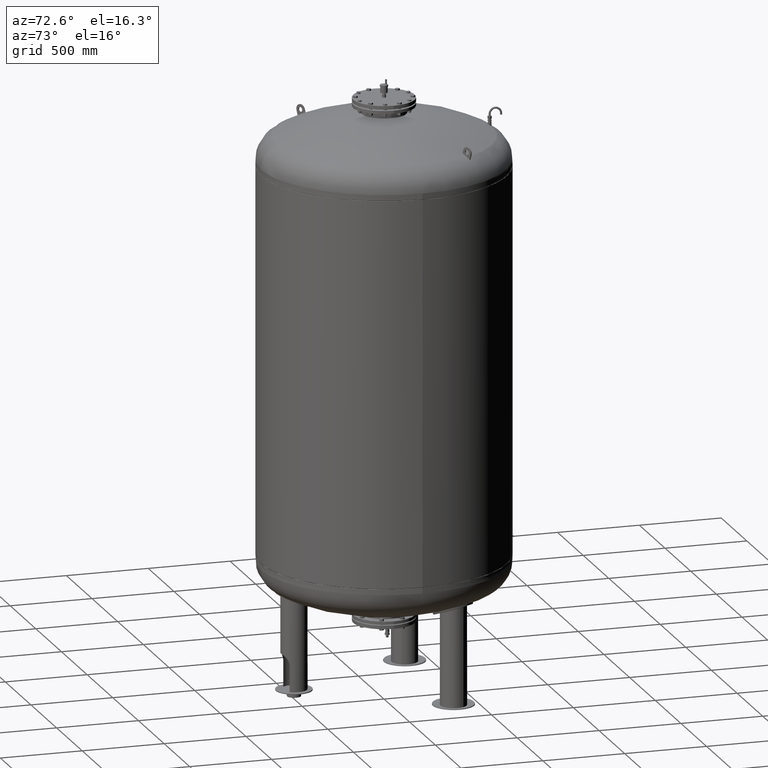
[diagram: clean part render]
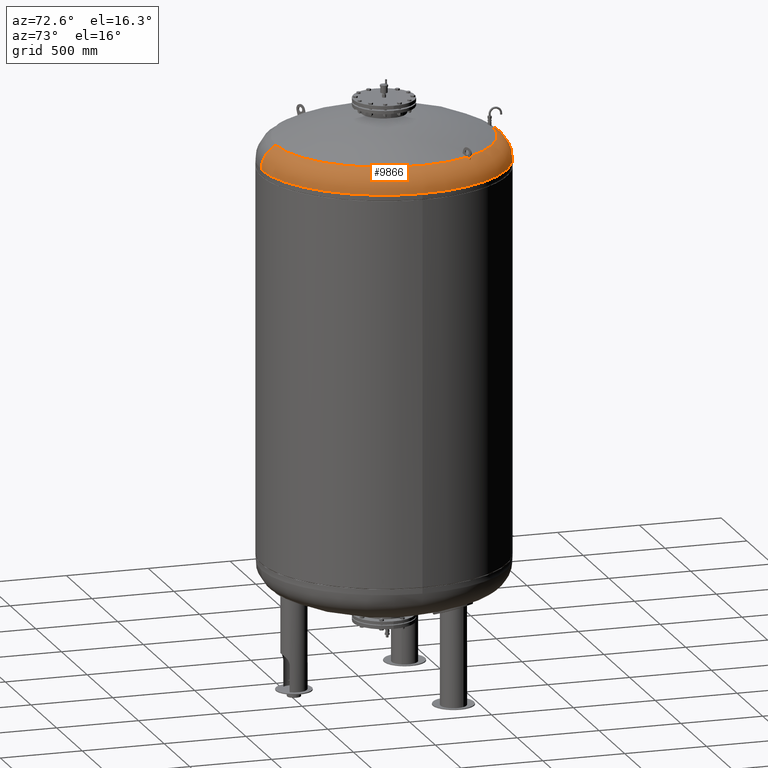
[diagram: same view with one face highlighted and labeled with its STEP entity id]
A machine part, auxiliary view. The second image highlights one B-rep face of the part: STEP entity #9866.
In plain terms, the highlighted toroidal blend (fillet) surface has major radius 591 mm and minor (blend) radius 159 mm.
Its self-contained STEP definition (entity closure, byte-faithful):
#9666=CARTESIAN_POINT('',(750.0,-5.423428E-014,3214.762332584101800));
#9667=VERTEX_POINT('',#9666);
#9691=CARTESIAN_POINT('',(1.267436E-013,750.0,3214.762332584101800));
#9692=VERTEX_POINT('',#9691);
#9700=CARTESIAN_POINT('',(1.459986E-014,-5.423428E-014,3214.762332584101800));
#9701=DIRECTION('',(0.0,0.0,-1.0));
#9702=DIRECTION('',(1.0,0.0,0.0));
#9703=AXIS2_PLACEMENT_3D('',#9700,#9701,#9702);
#9704=CIRCLE('',#9703,750.0);
#9705=EDGE_CURVE('',#9692,#9667,#9704,.T.);
#9773=CARTESIAN_POINT('',(3.489809E-014,-5.423428E-014,3214.762332584101800));
#9774=DIRECTION('',(4.945121E-017,-1.836970E-016,-1.0));
#9775=DIRECTION('',(0.0,-1.0,0.0));
#9776=AXIS2_PLACEMENT_3D('',#9773,#9774,#9775);
#9777=TOROIDAL_SURFACE('',#9776,591.0,159.0);
#9778=CARTESIAN_POINT('',(3.489809E-014,-750.0,3214.762332584101800));
#9779=VERTEX_POINT('',#9778);
#9780=CARTESIAN_POINT('',(2.782883E-014,-660.606666666666800,3357.716562866229200));
#9781=VERTEX_POINT('',#9780);
#9782=CARTESIAN_POINT('',(3.489809E-014,-591.0,3214.762332584101800));
#9783=DIRECTION('',(-1.0,0.0,0.0));
#9784=DIRECTION('',(0.0,-1.0,0.0));
#9785=AXIS2_PLACEMENT_3D('',#9782,#9783,#9784);
#9786=CIRCLE('',#9785,159.0);
#9787=EDGE_CURVE('',#9779,#9781,#9786,.T.);
#9788=ORIENTED_EDGE('',*,*,#9787,.F.);
#9789=CARTESIAN_POINT('',(1.459986E-014,-5.423428E-014,3214.762332584101800));
#9790=DIRECTION('',(0.0,0.0,-1.0));
#9791=DIRECTION('',(1.0,0.0,0.0));
#9792=AXIS2_PLACEMENT_3D('',#9789,#9790,#9791);
#9793=CIRCLE('',#9792,750.0);
#9794=EDGE_CURVE('',#9667,#9779,#9793,.T.);
#9795=ORIENTED_EDGE('',*,*,#9794,.F.);
#9796=ORIENTED_EDGE('',*,*,#9705,.F.);
#9797=CARTESIAN_POINT('',(1.087271E-013,660.606666666666800,3357.716562866229200));
#9798=VERTEX_POINT('',#9797);
#9799=CARTESIAN_POINT('',(1.072723E-013,591.0,3214.762332584101800));
#9800=DIRECTION('',(1.0,0.0,0.0));
#9801=DIRECTION('',(0.0,1.0,0.0));
#9802=AXIS2_PLACEMENT_3D('',#9799,#9800,#9801);
#9803=CIRCLE('',#9802,159.0);
#9804=EDGE_CURVE('',#9692,#9798,#9803,.T.);
#9805=ORIENTED_EDGE('',*,*,#9804,.T.);
#9806=CARTESIAN_POINT('',(570.596255916202270,332.898003566943030,3357.716562866229200));
#9807=VERTEX_POINT('',#9806);
#9808=CARTESIAN_POINT('',(7.530601E-015,-2.797401E-014,3357.716562866229200));
#9809=DIRECTION('',(0.0,0.0,-1.0));
#9810=DIRECTION('',(1.0,0.0,0.0));
#9811=AXIS2_PLACEMENT_3D('',#9808,#9809,#9810);
#9812=CIRCLE('',#9811,660.606666666666800);
#9813=EDGE_CURVE('',#9798,#9807,#9812,.T.);
#9814=ORIENTED_EDGE('',*,*,#9813,.T.);
#9815=CARTESIAN_POINT('',(588.588482349337030,343.285820341434260,3345.575471650438900));
#9816=VERTEX_POINT('',#9815);
#9817=CARTESIAN_POINT('',(570.596255916202270,332.898003566943030,3357.716562866229200));
#9818=CARTESIAN_POINT('',(572.054041405254220,333.739656411467930,3356.896943261032400));
#9819=CARTESIAN_POINT('',(573.514867502697370,334.583064752065810,3356.038760350182700));
#9820=CARTESIAN_POINT('',(576.976511612975400,336.581645910973690,3353.912932457119000));
#9821=CARTESIAN_POINT('',(578.974781685762880,337.735347675411160,3352.612126014599200));
#9822=CARTESIAN_POINT('',(582.931774475123920,340.019918527530190,3349.881544856047600));
#9823=CARTESIAN_POINT('',(584.890496100696050,341.150786985321820,3348.451768031998700));
#9824=CARTESIAN_POINT('',(587.410277309621960,342.605583344594150,3346.507652363015000));
#9825=CARTESIAN_POINT('',(588.001091399301120,342.946690018311470,3346.044094471851200));
#9826=CARTESIAN_POINT('',(588.588482349337030,343.285820341434260,3345.575471650438900));
#9827=B_SPLINE_CURVE_WITH_KNOTS('',3,(#9817,#9818,#9819,#9820,#9821,#9822,#9823,#9824,#9825,#9826),.UNSPECIFIED.,.F.,.U.,(4,2,2,2,4),(774.656358350488740,780.010685689572260,787.369273058092740,794.727860426613230,796.996990205935960),.UNSPECIFIED.);
#9828=EDGE_CURVE('',#9807,#9816,#9827,.T.);
#9829=ORIENTED_EDGE('',*,*,#9828,.T.);
#9830=CARTESIAN_POINT('',(591.588482349336690,338.089667918727570,3345.575471650438900));
#9831=VERTEX_POINT('',#9830);
#9832=CARTESIAN_POINT('',(588.588482349337030,343.285820341434260,3345.575471650438900));
#9833=CARTESIAN_POINT('',(589.090111222559810,342.418391231101340,3345.578030124753200));
#9834=CARTESIAN_POINT('',(589.590425441357980,341.552525995023070,3345.579301453786200));
#9835=CARTESIAN_POINT('',(590.089401200233620,340.688274628905390,3345.579301453786200));
#9836=CARTESIAN_POINT('',(590.588376959112570,339.824023262781680,3345.579301453786200));
#9837=CARTESIAN_POINT('',(591.088081140414260,338.957805821382750,3345.578030124753200));
#9838=CARTESIAN_POINT('',(591.588482349336690,338.089667918727570,3345.575471650438900));
#9839=B_SPLINE_CURVE_WITH_KNOTS('',3,(#9832,#9833,#9834,#9835,#9836,#9837,#9838),.UNSPECIFIED.,.F.,.U.,(4,3,4),(-2.993854553253430,0.0,2.993854553273963),.UNSPECIFIED.);
#9840=EDGE_CURVE('',#9816,#9831,#9839,.T.);
#9841=ORIENTED_EDGE('',*,*,#9840,.T.);
#9842=CARTESIAN_POINT('',(573.596255916202270,327.701851144236400,3357.716562866229200));
#9843=VERTEX_POINT('',#9842);
#9844=CARTESIAN_POINT('',(591.588482349336690,338.089667918727570,3345.575471650438900));
#9845=CARTESIAN_POINT('',(591.001034993602270,337.750505029759610,3346.044139472540300));
#9846=CARTESIAN_POINT('',(590.410163811151510,337.409365393515030,3346.507741414689900));
#9847=CARTESIAN_POINT('',(587.890327860486420,335.954537429084780,3348.451893026950100));
#9848=CARTESIAN_POINT('',(585.931609407500670,334.823670802986780,3349.881663004374300));
#9849=CARTESIAN_POINT('',(581.974623379374860,332.539103854468750,3352.612231014925300));
#9850=CARTESIAN_POINT('',(579.976356895234860,331.385404161938030,3353.913031156073000));
#9851=CARTESIAN_POINT('',(576.514766784393940,329.386854179619720,3356.038819520509200));
#9852=CARTESIAN_POINT('',(575.053991207979040,328.543475007350930,3356.896971483751700));
#9853=CARTESIAN_POINT('',(573.596255916202270,327.701851144236400,3357.716562866229200));
#9854=B_SPLINE_CURVE_WITH_KNOTS('',3,(#9844,#9845,#9846,#9847,#9848,#9849,#9850,#9851,#9852,#9853),.UNSPECIFIED.,.F.,.U.,(4,2,2,2,4),(144.901644365231360,147.170992146182750,154.529560626149700,161.888129106116650,167.242268222433860),.UNSPECIFIED.);
#9855=EDGE_CURVE('',#9831,#9843,#9854,.T.);
#9856=ORIENTED_EDGE('',*,*,#9855,.T.);
#9857=CARTESIAN_POINT('',(7.530601E-015,-2.797401E-014,3357.716562866229200));
#9858=DIRECTION('',(0.0,0.0,-1.0));
#9859=DIRECTION('',(1.0,0.0,0.0));
#9860=AXIS2_PLACEMENT_3D('',#9857,#9858,#9859);
#9861=CIRCLE('',#9860,660.606666666666800);
#9862=EDGE_CURVE('',#9843,#9781,#9861,.T.);
#9863=ORIENTED_EDGE('',*,*,#9862,.T.);
#9864=EDGE_LOOP('',(#9788,#9795,#9796,#9805,#9814,#9829,#9841,#9856,#9863));
#9865=FACE_OUTER_BOUND('',#9864,.T.);
#9866=ADVANCED_FACE('',(#9865),#9777,.T.);